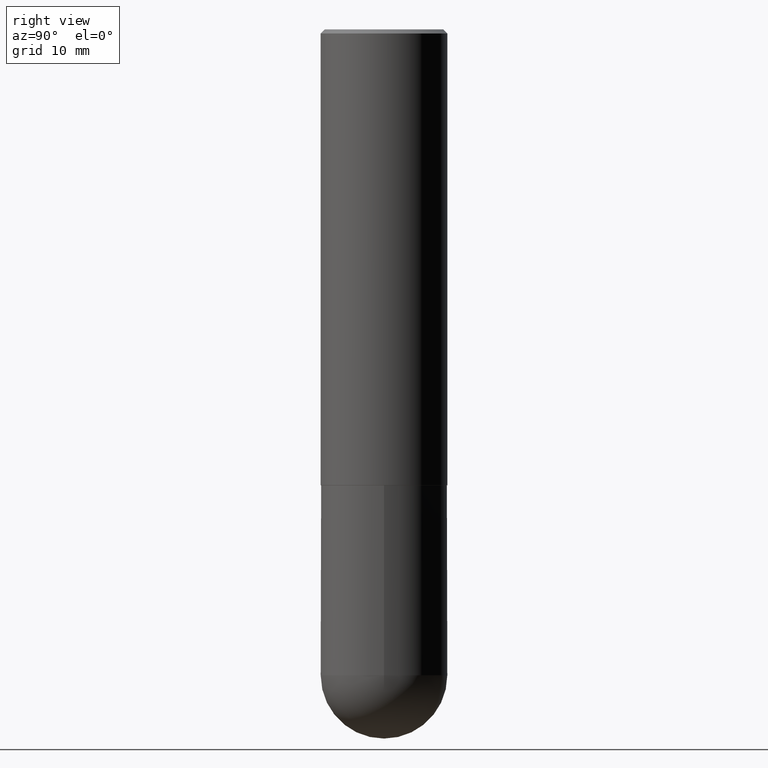
[diagram: clean part render]
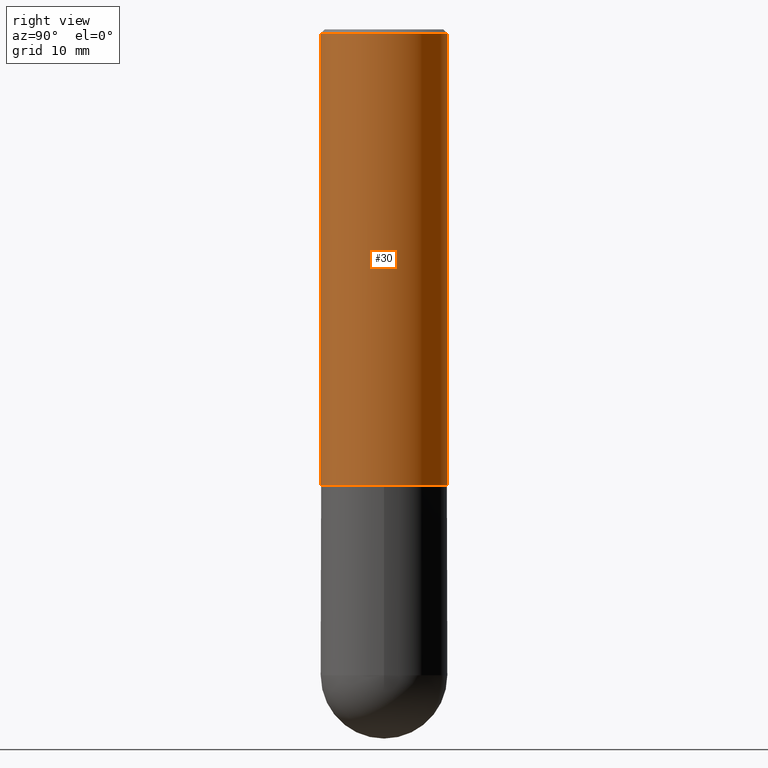
[diagram: same view with one face highlighted and labeled with its STEP entity id]
A machine part, right view. The second image highlights one B-rep face of the part: STEP entity #30.
In plain terms, the highlighted cylindrical surface (partial cylindrical patch) has radius 7.9375 mm, axis along (-0, 0, 1).
Its self-contained STEP definition (entity closure, byte-faithful):
#11 = CARTESIAN_POINT ( 'NONE',  ( 4.890912166980584074E-31, -6.982999116932638204E-17, -0.02000000000000007327 ) ) ;
#16 = VERTEX_POINT ( 'NONE', #235 ) ;
#25 = CYLINDRICAL_SURFACE ( 'NONE', #113, 0.3125000000000002220 ) ;
#30 = ADVANCED_FACE ( 'NONE', ( #200 ), #25, .T. ) ;
#56 = CARTESIAN_POINT ( 'NONE',  ( 5.499830731769645034E-29, -7.852382506990722396E-15, -2.248999999999999666 ) ) ;
#71 = VERTEX_POINT ( 'NONE', #146 ) ;
#77 = CARTESIAN_POINT ( 'NONE',  ( 2.220446049250314264E-15, 0.3125000000000002220, -1.091093612020721528E-15 ) ) ;
#80 = DIRECTION ( 'NONE',  ( -2.445456083490282999E-29, 3.491499558466306603E-15, 1.000000000000000000 ) ) ;
#81 = DIRECTION ( 'NONE',  ( -6.982962677686265922E-15, -1.000000000000000000, 3.491499558466306603E-15 ) ) ;
#84 = VECTOR ( 'NONE', #368, 39.37007874015748143 ) ;
#90 = VERTEX_POINT ( 'NONE', #91 ) ;
#91 = CARTESIAN_POINT ( 'NONE',  ( 2.220446049250342269E-15, 0.3124999999999924505, -2.249000000000000998 ) ) ;
#98 = VECTOR ( 'NONE', #80, 39.37007874015748143 ) ;
#113 = AXIS2_PLACEMENT_3D ( 'NONE', #139, #371, #81 ) ;
#136 = ORIENTED_EDGE ( 'NONE', *, *, #156, .F. ) ;
#139 = CARTESIAN_POINT ( 'NONE',  ( 0.000000000000000000, 0.000000000000000000, 0.000000000000000000 ) ) ;
#141 = LINE ( 'NONE', #77, #98 ) ;
#142 = DIRECTION ( 'NONE',  ( -2.445456083490282999E-29, 3.491499558466306603E-15, 1.000000000000000000 ) ) ;
#143 = AXIS2_PLACEMENT_3D ( 'NONE', #56, #142, #403 ) ;
#146 = CARTESIAN_POINT ( 'NONE',  ( -2.143905624303604008E-15, -0.3125000000000002220, -0.01999999999999898040 ) ) ;
#156 = EDGE_CURVE ( 'NONE', #349, #71, #234, .T. ) ;
#182 = CIRCLE ( 'NONE', #143, 0.3125000000000002776 ) ;
#187 = ORIENTED_EDGE ( 'NONE', *, *, #303, .F. ) ;
#200 = FACE_OUTER_BOUND ( 'NONE', #249, .T. ) ;
#209 = AXIS2_PLACEMENT_3D ( 'NONE', #11, #393, #290 ) ;
#216 = EDGE_CURVE ( 'NONE', #90, #16, #141, .T. ) ;
#224 = CARTESIAN_POINT ( 'NONE',  ( -2.182175836776905099E-15, -0.3125000000000081601, -2.248999999999998778 ) ) ;
#232 = CARTESIAN_POINT ( 'NONE',  ( -2.182175836776959530E-15, -0.3125000000000002220, 1.091093612020721528E-15 ) ) ;
#234 = LINE ( 'NONE', #232, #84 ) ;
#235 = CARTESIAN_POINT ( 'NONE',  ( 2.182175836776959530E-15, 0.3125000000000000555, -0.02000000000000116615 ) ) ;
#249 = EDGE_LOOP ( 'NONE', ( #319, #322, #187, #136 ) ) ;
#290 = DIRECTION ( 'NONE',  ( -6.982962677686265133E-15, -1.000000000000000000, 3.496765431890254947E-15 ) ) ;
#303 = EDGE_CURVE ( 'NONE', #71, #16, #339, .T. ) ;
#319 = ORIENTED_EDGE ( 'NONE', *, *, #409, .T. ) ;
#322 = ORIENTED_EDGE ( 'NONE', *, *, #216, .T. ) ;
#339 = CIRCLE ( 'NONE', #209, 0.3125000000000001665 ) ;
#349 = VERTEX_POINT ( 'NONE', #224 ) ;
#368 = DIRECTION ( 'NONE',  ( -2.445456083490282999E-29, 3.491499558466306603E-15, 1.000000000000000000 ) ) ;
#371 = DIRECTION ( 'NONE',  ( -2.445456083490282999E-29, 3.491499558466306603E-15, 1.000000000000000000 ) ) ;
#393 = DIRECTION ( 'NONE',  ( -2.445456083490282999E-29, 3.491499558466306603E-15, 1.000000000000000000 ) ) ;
#403 = DIRECTION ( 'NONE',  ( -6.982962677686265922E-15, -1.000000000000000000, 3.496765431890253764E-15 ) ) ;
#409 = EDGE_CURVE ( 'NONE', #349, #90, #182, .T. ) ;